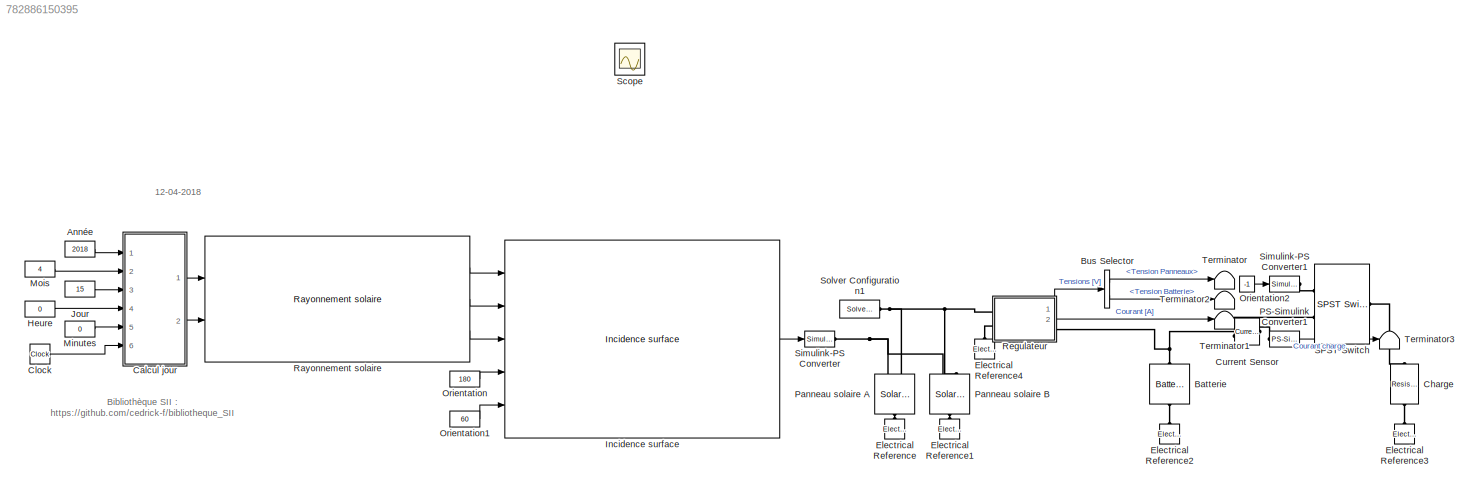
MODEL slx_782886150395
KIND model
CONFIG AbsTol = auto
CONFIG EnableMultiTasking = off
CONFIG FixedStep = auto
CONFIG MaxStep = auto
CONFIG MinStep = auto
CONFIG RelTol = 1e-3
CONFIG SampleTimeConstraint = Unconstrained
CONFIG Solver = VariableStepAuto
CONFIG SolverName = VariableStepAuto
CONFIG StartTime = 0.0
CONFIG StopTime = 3600*24
BLOCK [Constant] Année
  Value = 2018
BLOCK [Reference] Batterie  REF=elec_lib/Sources/Battery
  AttributesFormatString = %<Vnom> V\n%<AH> Ah
  Ports = [0, 0, 0, 0, 0, 1, 1]
  SourceBlock = elec_lib/Sources/Battery
  SourceProductBaseCode = SN
  SourceProductName = Simscape Electronics
  SourceType = Battery
BLOCK [BusSelector] Bus Selector
  OutputAsBus = off
  OutputSignals = Tension Panneaux,Tension Batterie
  Ports = [1, 2]
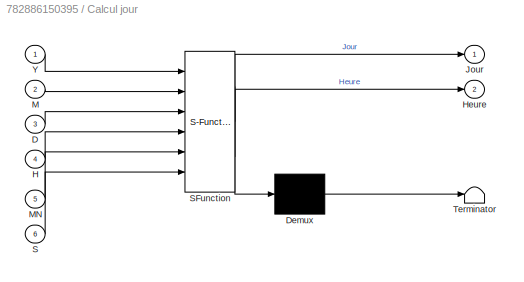
BLOCK [SubSystem] Calcul jour
  ErrorFcn = Stateflow.Translate.translate
  PermitHierarchicalResolution = ExplicitOnly
  Ports = [6, 2]
  RequestExecContextInheritance = off
  SFBlockType = MATLAB Function
  TreatAsAtomicUnit = on
  Variant = off
BLOCK [Demux] Calcul jour/ Demux 
  Outputs = 1
  Ports = [1, 1]
BLOCK [S-Function] Calcul jour/ SFunction 
  EnableBusSupport = on
  FunctionName = sf_sfun
  PortCounts = [6 3]
  Ports = [6, 3]
  SFcnIsStateOwnerBlock = off
  SFunctionDeploymentMode = off
  Tag = Stateflow S-Function Panneau_PV_avec_charge 2
BLOCK [Terminator] Calcul jour/ Terminator 
BLOCK [Inport] Calcul jour/D
  IconDisplay = Port number
  Port = 3
BLOCK [Inport] Calcul jour/H
  IconDisplay = Port number
  Port = 4
BLOCK [Outport] Calcul jour/Heure
  IconDisplay = Port number
  Port = 2
BLOCK [Outport] Calcul jour/Jour
  IconDisplay = Port number
BLOCK [Inport] Calcul jour/M
  IconDisplay = Port number
  Port = 2
BLOCK [Inport] Calcul jour/MN
  IconDisplay = Port number
  Port = 5
BLOCK [Inport] Calcul jour/S
  IconDisplay = Port number
  Port = 6
BLOCK [Inport] Calcul jour/Y
  IconDisplay = Port number
BLOCK [Reference] Charge  REF=elec_lib/Passive Devices/Resistor
  AttributesFormatString = %<R> Ohm
  Ports = [0, 0, 0, 0, 0, 1, 1]
  SourceBlock = elec_lib/Passive Devices/Resistor
  SourceProductBaseCode = SN
  SourceProductName = Simscape Electronics
  SourceType = Resistor
BLOCK [Clock] Clock
BLOCK [Reference] Current Sensor  REF=fl_lib/Electrical/Electrical Sensors/Current Sensor
  Ports = [0, 0, 0, 0, 0, 1, 2]
  SourceBlock = fl_lib/Electrical/Electrical Sensors/Current Sensor
  SourceProductBaseCode = SS
  SourceProductName = Simscape
  SourceType = Current Sensor
BLOCK [Reference] Electrical Reference  REF=fl_lib/Electrical/Electrical Elements/Electrical Reference
  Ports = [0, 0, 0, 0, 0, 1]
  SourceBlock = fl_lib/Electrical/Electrical Elements/Electrical Reference
  SourceProductBaseCode = SS
  SourceProductName = Simscape
  SourceType = Electrical Reference
BLOCK [Reference] Electrical Reference1  REF=fl_lib/Electrical/Electrical Elements/Electrical Reference
  Ports = [0, 0, 0, 0, 0, 1]
  SourceBlock = fl_lib/Electrical/Electrical Elements/Electrical Reference
  SourceProductBaseCode = SS
  SourceProductName = Simscape
  SourceType = Electrical Reference
BLOCK [Reference] Electrical Reference2  REF=fl_lib/Electrical/Electrical Elements/Electrical Reference
  Ports = [0, 0, 0, 0, 0, 1]
  SourceBlock = fl_lib/Electrical/Electrical Elements/Electrical Reference
  SourceProductBaseCode = SS
  SourceProductName = Simscape
  SourceType = Electrical Reference
BLOCK [Reference] Electrical Reference3  REF=fl_lib/Electrical/Electrical Elements/Electrical Reference
  Ports = [0, 0, 0, 0, 0, 1]
  SourceBlock = fl_lib/Electrical/Electrical Elements/Electrical Reference
  SourceProductBaseCode = SS
  SourceProductName = Simscape
  SourceType = Electrical Reference
BLOCK [Reference] Electrical Reference4  REF=fl_lib/Electrical/Electrical Elements/Electrical Reference
  Ports = [0, 0, 0, 0, 0, 1]
  SourceBlock = fl_lib/Electrical/Electrical Elements/Electrical Reference
  SourceProductBaseCode = SS
  SourceProductName = Simscape
  SourceType = Electrical Reference
BLOCK [Constant] Heure
  Value = 0
BLOCK [Reference] Incidence surface  REF=Library_SII/Thermique/Incidence surface
  Ports = [5, 1]
  SourceBlock = Library_SII/Thermique/Incidence surface
  SourceProductName = SII
BLOCK [Constant] Jour
  Value = 15
BLOCK [Constant] Minutes
  Value = 0
BLOCK [Constant] Mois
  Value = 4
BLOCK [Constant] Orientation
  Value = 180
BLOCK [Constant] Orientation1
  Value = 60
BLOCK [Constant] Orientation2
  Value = -1
BLOCK [Reference] PS-Simulink Converter1  REF=nesl_utility/PS-Simulink
Converter
  Ports = [0, 1, 0, 0, 0, 1]
  SourceBlock = nesl_utility/PS-Simulink\nConverter
  SourceProductBaseCode = SS
  SourceProductName = Simscape
  SourceType = PS-Simulink\nConverter
BLOCK [Reference] Panneau solaire A  REF=elec_lib/Sources/Solar Cell
  AttributesFormatString = %<N_series> cellules
  Ports = [0, 0, 0, 0, 0, 2, 1]
  SourceBlock = elec_lib/Sources/Solar Cell
  SourceProductBaseCode = SN
  SourceProductName = Simscape Electronics
  SourceType = Solar Cell
BLOCK [Reference] Panneau solaire B  REF=elec_lib/Sources/Solar Cell
  AttributesFormatString = %<N_series> cellules
  Ports = [0, 0, 0, 0, 0, 2, 1]
  SourceBlock = elec_lib/Sources/Solar Cell
  SourceProductBaseCode = SN
  SourceProductName = Simscape Electronics
  SourceType = Solar Cell
BLOCK [Reference] Rayonnement solaire  REF=Library_SII/Thermique/Rayonnement solaire
  Ports = [2, 3]
  SourceBlock = Library_SII/Thermique/Rayonnement solaire
  SourceProductName = SII
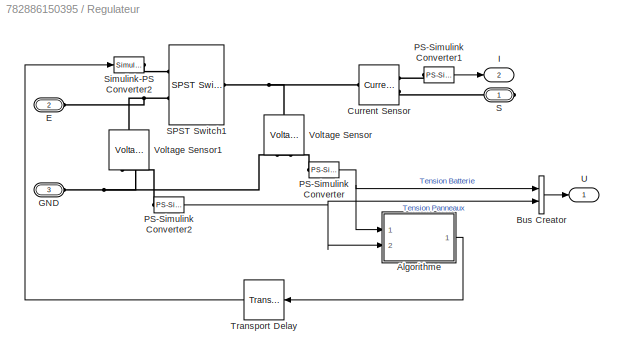
BLOCK [SubSystem] Regulateur
  Ports = [0, 2, 0, 0, 0, 2, 1]
  RequestExecContextInheritance = off
  Variant = off
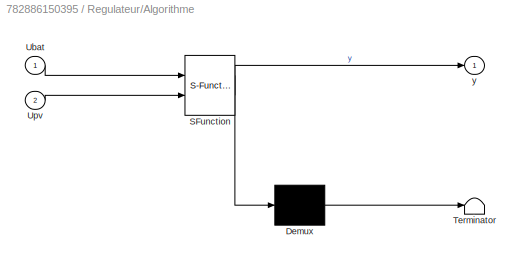
BLOCK [SubSystem] Regulateur/Algorithme
  ErrorFcn = Stateflow.Translate.translate
  MinAlgLoopOccurrences = on
  PermitHierarchicalResolution = ExplicitOnly
  Ports = [2, 1]
  RequestExecContextInheritance = off
  SFBlockType = MATLAB Function
  TreatAsAtomicUnit = on
  Variant = off
BLOCK [Demux] Regulateur/Algorithme/ Demux 
  Outputs = 1
  Ports = [1, 1]
BLOCK [S-Function] Regulateur/Algorithme/ SFunction 
  EnableBusSupport = on
  FunctionName = sf_sfun
  PortCounts = [2 2]
  Ports = [2, 2]
  SFcnIsStateOwnerBlock = off
  SFunctionDeploymentMode = off
  Tag = Stateflow S-Function Panneau_PV_avec_charge 1
BLOCK [Terminator] Regulateur/Algorithme/ Terminator 
BLOCK [Inport] Regulateur/Algorithme/Ubat
  IconDisplay = Port number
BLOCK [Inport] Regulateur/Algorithme/Upv
  IconDisplay = Port number
  Port = 2
BLOCK [Outport] Regulateur/Algorithme/y
  IconDisplay = Port number
BLOCK [BusCreator] Regulateur/Bus Creator
  DisplayOption = bar
  InheritFromInputs = on
  Inputs = 2
  Ports = [2, 1]
BLOCK [Reference] Regulateur/Current Sensor  REF=fl_lib/Electrical/Electrical Sensors/Current Sensor
  Ports = [0, 0, 0, 0, 0, 1, 2]
  SourceBlock = fl_lib/Electrical/Electrical Sensors/Current Sensor
  SourceProductBaseCode = SS
  SourceProductName = Simscape
  SourceType = Current Sensor
BLOCK [PMIOPort] Regulateur/E
  Port = 2
  Side = Left
BLOCK [PMIOPort] Regulateur/GND
  Port = 3
  Side = Left
BLOCK [Outport] Regulateur/I
  IconDisplay = Port number
  Port = 2
BLOCK [Reference] Regulateur/PS-Simulink Converter  REF=nesl_utility/PS-Simulink
Converter
  Ports = [0, 1, 0, 0, 0, 1]
  SourceBlock = nesl_utility/PS-Simulink\nConverter
  SourceProductBaseCode = SS
  SourceProductName = Simscape
  SourceType = PS-Simulink\nConverter
BLOCK [Reference] Regulateur/PS-Simulink Converter1  REF=nesl_utility/PS-Simulink
Converter
  Ports = [0, 1, 0, 0, 0, 1]
  SourceBlock = nesl_utility/PS-Simulink\nConverter
  SourceProductBaseCode = SS
  SourceProductName = Simscape
  SourceType = PS-Simulink\nConverter
BLOCK [Reference] Regulateur/PS-Simulink Converter2  REF=nesl_utility/PS-Simulink
Converter
  Ports = [0, 1, 0, 0, 0, 1]
  SourceBlock = nesl_utility/PS-Simulink\nConverter
  SourceProductBaseCode = SS
  SourceProductName = Simscape
  SourceType = PS-Simulink\nConverter
BLOCK [PMIOPort] Regulateur/S
  Port = 1
  Side = Right
BLOCK [Reference] Regulateur/SPST Switch1  REF=elec_lib/Passive Devices/Switches/SPST Switch
  Ports = [0, 0, 0, 0, 0, 2, 1]
  SourceBlock = elec_lib/Passive Devices/Switches/SPST Switch
  SourceProductBaseCode = SN
  SourceProductName = Simscape Electronics
  SourceType = SPST Switch
BLOCK [Reference] Regulateur/Simulink-PS Converter2  REF=nesl_utility/Simulink-PS
Converter
  Ports = [1, 0, 0, 0, 0, 0, 1]
  SourceBlock = nesl_utility/Simulink-PS\nConverter
  SourceProductBaseCode = SS
  SourceProductName = Simscape
  SourceType = Simulink-PS\nConverter
BLOCK [TransportDelay] Regulateur/Transport Delay
  Ports = [1, 1]
BLOCK [Outport] Regulateur/U
  IconDisplay = Port number
BLOCK [Reference] Regulateur/Voltage Sensor  REF=fl_lib/Electrical/Electrical Sensors/Voltage Sensor
  Ports = [0, 0, 0, 0, 0, 1, 2]
  SourceBlock = fl_lib/Electrical/Electrical Sensors/Voltage Sensor
  SourceProductBaseCode = SS
  SourceProductName = Simscape
  SourceType = Voltage Sensor
BLOCK [Reference] Regulateur/Voltage Sensor1  REF=fl_lib/Electrical/Electrical Sensors/Voltage Sensor
  Ports = [0, 0, 0, 0, 0, 1, 2]
  SourceBlock = fl_lib/Electrical/Electrical Sensors/Voltage Sensor
  SourceProductBaseCode = SS
  SourceProductName = Simscape
  SourceType = Voltage Sensor
BLOCK [Reference] SPST Switch  REF=elec_lib/Passive Devices/Switches/SPST Switch
  Ports = [0, 0, 0, 0, 0, 2, 1]
  SourceBlock = elec_lib/Passive Devices/Switches/SPST Switch
  SourceProductBaseCode = SN
  SourceProductName = Simscape Electronics
  SourceType = SPST Switch
BLOCK [Scope] Scope
  IOType = viewer
  NumInputPorts = 1
  Ports = []
  ScopeSpecificationString = Simulink.scopes.TimeScopeBlockCfg('CurrentConfiguration', extmgr.ConfigurationSet(extmgr.Configuration('Core','General UI',true),extmgr.Configuration('Core','Source UI',true),extmgr.Configuration('Sources','WiredSimulink',true),extmgr.Configuration('Visuals','Time Domain',true,'SerializedDisplays',{struct('MinYLimReal','-88.57346','MaxYLimReal','797.16118','YLabelReal','','MinYLimMag','0.00000','M...<+3599ch>
BLOCK [Reference] Simulink-PS Converter  REF=nesl_utility/Simulink-PS
Converter
  Ports = [1, 0, 0, 0, 0, 0, 1]
  SourceBlock = nesl_utility/Simulink-PS\nConverter
  SourceProductBaseCode = SS
  SourceProductName = Simscape
  SourceType = Simulink-PS\nConverter
BLOCK [Reference] Simulink-PS Converter1  REF=nesl_utility/Simulink-PS
Converter
  Ports = [1, 0, 0, 0, 0, 0, 1]
  SourceBlock = nesl_utility/Simulink-PS\nConverter
  SourceProductBaseCode = SS
  SourceProductName = Simscape
  SourceType = Simulink-PS\nConverter
BLOCK [Reference] Solver Configuration1  REF=nesl_utility/Solver
Configuration
  Ports = [0, 0, 0, 0, 0, 0, 1]
  SourceBlock = nesl_utility/Solver\nConfiguration
  SourceProductBaseCode = SS
  SourceProductName = Simscape
  SourceType = Solver\nConfiguration
BLOCK [Terminator] Terminator
BLOCK [Terminator] Terminator1
BLOCK [Terminator] Terminator2
BLOCK [Terminator] Terminator3
ANNOTATION (root): 12-04-2018
ANNOTATION (root): Bibliothèque SII : https://github.com/cedrick-f/bibliotheque_SII
LINE Année:1 -> Calcul jour:1
LINE Bus Selector:1 -> Terminator:1
LINE Bus Selector:2 -> Terminator2:1
LINE Calcul jour:1 -> Rayonnement solaire:1
LINE Calcul jour:2 -> Rayonnement solaire:2
LINE Clock:1 -> Calcul jour:6
LINE Heure:1 -> Calcul jour:4
LINE Incidence surface:1 -> Simulink-PS Converter:1
LINE Jour:1 -> Calcul jour:3
LINE Minutes:1 -> Calcul jour:5
LINE Mois:1 -> Calcul jour:2
LINE Orientation1:1 -> Incidence surface:5
LINE Orientation2:1 -> Simulink-PS Converter1:1
LINE Orientation:1 -> Incidence surface:4
LINE PS-Simulink Converter1:1 -> Terminator3:1
LINE Rayonnement solaire:1 -> Incidence surface:1
LINE Rayonnement solaire:2 -> Incidence surface:2
LINE Rayonnement solaire:3 -> Incidence surface:3
LINE Regulateur/Algorithme:1 -> Regulateur/Transport Delay:1
LINE Regulateur/Bus Creator:1 -> Regulateur/U:1
LINE Regulateur/PS-Simulink Converter1:1 -> Regulateur/I:1
NET Regulateur/PS-Simulink Converter2:1 -> Regulateur/Algorithme:2, Regulateur/Bus Creator:2
NET Regulateur/PS-Simulink Converter:1 -> Regulateur/Algorithme:1, Regulateur/Bus Creator:1
LINE Regulateur/Transport Delay:1 -> Regulateur/Simulink-PS Converter2:1
LINE Regulateur:1 -> Bus Selector:1
LINE Regulateur:2 -> Terminator1:1
PNET net1: Batterie:LConn1 -- Current Sensor:LConn1 -- Regulateur:RConn1
PLINE Batterie:RConn1 -- Electrical Reference2:LConn1
PLINE Charge:LConn1 -- SPST Switch:RConn1
PLINE Charge:RConn1 -- Electrical Reference3:LConn1
PLINE Current Sensor:RConn1 -- PS-Simulink Converter1:LConn1
PLINE Current Sensor:RConn2 -- SPST Switch:LConn2
PLINE Electrical Reference1:LConn1 -- Panneau solaire B:RConn1
PLINE Electrical Reference4:LConn1 -- Regulateur:LConn2
PLINE Electrical Reference:LConn1 -- Panneau solaire A:RConn1
PNET net2: Panneau solaire A:LConn1 -- Panneau solaire B:LConn1 -- Simulink-PS Converter:RConn1
PNET net3: Panneau solaire A:LConn2 -- Panneau solaire B:LConn2 -- Regulateur:LConn1 -- Solver Configuration1:RConn1
PNET net4: Regulateur/Current Sensor:LConn1 -- Regulateur/SPST Switch1:RConn1 -- Regulateur/Voltage Sensor:LConn1
PLINE Regulateur/Current Sensor:RConn1 -- Regulateur/PS-Simulink Converter1:LConn1
PLINE Regulateur/Current Sensor:RConn2 -- Regulateur/S:RConn1
PNET net5: Regulateur/E:RConn1 -- Regulateur/SPST Switch1:LConn2 -- Regulateur/Voltage Sensor1:LConn1
PNET net6: Regulateur/GND:RConn1 -- Regulateur/Voltage Sensor1:RConn2 -- Regulateur/Voltage Sensor:RConn2
PLINE Regulateur/PS-Simulink Converter2:LConn1 -- Regulateur/Voltage Sensor1:RConn1
PLINE Regulateur/PS-Simulink Converter:LConn1 -- Regulateur/Voltage Sensor:RConn1
PLINE Regulateur/SPST Switch1:LConn1 -- Regulateur/Simulink-PS Converter2:RConn1
PLINE SPST Switch:LConn1 -- Simulink-PS Converter1:RConn1
note: NET lines group one-source signal fan-out (src -> all destinations, sorted); 1:1 wires keep LINE; PNET lines group multi-terminal physical nets as a canonical sorted terminal list (undirected conserving connections); 2-terminal nets keep the pairwise PLINE form
CHART Regulateur/Algorithme states=1 transitions=1
  STATE_LABEL 'eML_blk_kernel()'
  STATE_LABEL 'SCRIPT:\nfunction y = fcn(Ubat,Upv)\n\nUref = 13.6; %V\nDeltaU = 0.4; %V\n\nif Ubat > Uref\n    y = -1; % Circuit ouvert\nelse\n    if Upv-Ubat > DeltaU\n        y = 1;  % Circuit fermé\n    else\n        y = -1; % Circuit ouvert\n    end\nend\n'
CHART Calcul jour states=1 transitions=1
  STATE_LABEL 'eML_blk_kernel()'
  STATE_LABEL "SCRIPT:\nfunction [Jour, Heure]= fcn(Y,M,D,H,MN,S)\n\ncoder.extrinsic('datenum'); \nj1 = 1;\nj2 = 1;\n[j1] = datenum(Y,M,D);\n[j2] = datenum(Y,1,1);\nJour = j1 - j2 + 1;\n\nHeure = H*3600+MN*60+S;\n\n\n"
